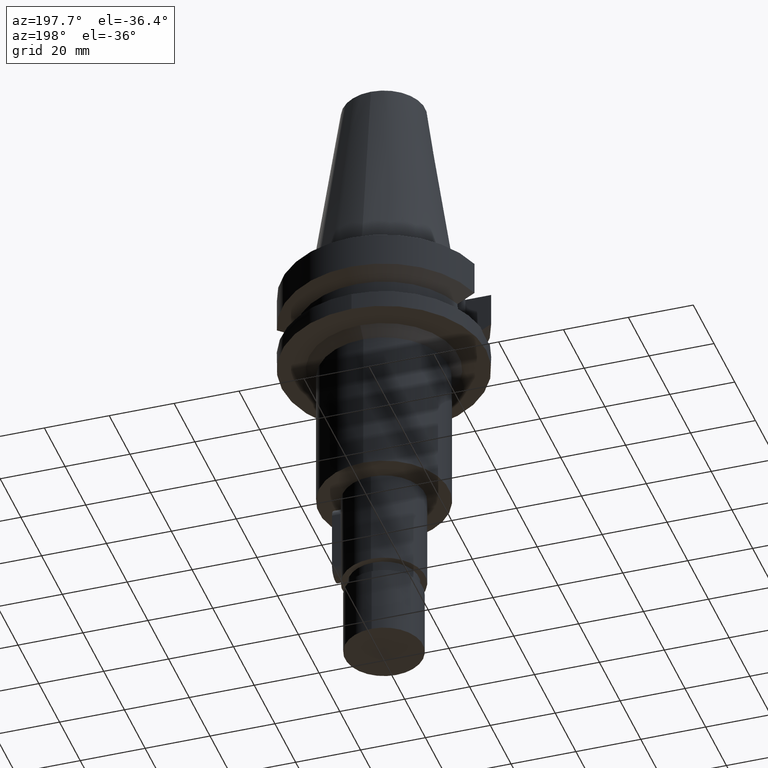
[diagram: clean part render]
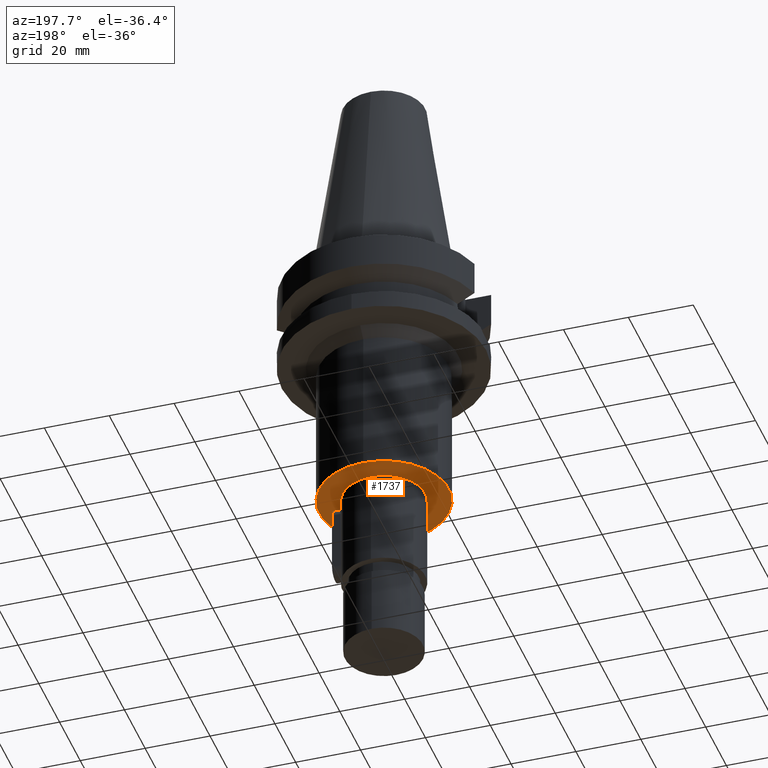
[diagram: same view with one face highlighted and labeled with its STEP entity id]
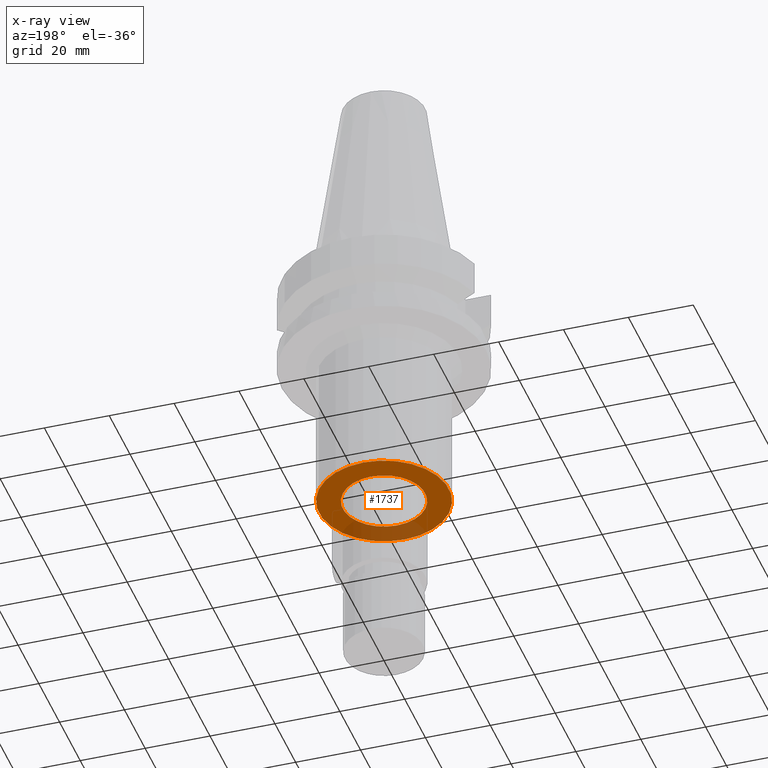
[diagram: x-ray of the same camera — body ghosted, the highlighted face saturated]
A machine part, auxiliary view. The second image highlights one B-rep face of the part: STEP entity #1737.
The next image is the same camera in x-ray: the body ghosted, the highlighted face saturated — about 22% of this face is hidden behind the body in this view.
In plain terms, the highlighted planar face has unit normal (0, 0, -1).
Its self-contained STEP definition (entity closure, byte-faithful):
#694=CARTESIAN_POINT('',(0.E0,2.145213798066E-14,-7.5E1));
#695=DIRECTION('',(0.E0,0.E0,1.E0));
#696=DIRECTION('',(0.E0,1.E0,0.E0));
#697=AXIS2_PLACEMENT_3D('',#694,#695,#696);
#702=CARTESIAN_POINT('',(0.E0,2.145213798066E-14,-7.5E1));
#703=DIRECTION('',(0.E0,0.E0,1.E0));
#704=DIRECTION('',(0.E0,-1.E0,0.E0));
#705=AXIS2_PLACEMENT_3D('',#702,#703,#704);
#710=CARTESIAN_POINT('',(0.E0,2.145213798066E-14,-7.5E1));
#711=DIRECTION('',(0.E0,0.E0,-1.E0));
#712=DIRECTION('',(0.E0,1.E0,0.E0));
#713=AXIS2_PLACEMENT_3D('',#710,#711,#712);
#718=CARTESIAN_POINT('',(0.E0,2.145213798066E-14,-7.5E1));
#719=DIRECTION('',(0.E0,0.E0,-1.E0));
#720=DIRECTION('',(0.E0,-1.E0,0.E0));
#721=AXIS2_PLACEMENT_3D('',#718,#719,#720);
#1183=CARTESIAN_POINT('',(0.E0,2.E1,-7.5E1));
#1184=VERTEX_POINT('',#1183);
#1185=CARTESIAN_POINT('',(0.E0,-2.E1,-7.5E1));
#1186=VERTEX_POINT('',#1185);
#1187=CARTESIAN_POINT('',(0.E0,1.27E1,-7.5E1));
#1188=CARTESIAN_POINT('',(0.E0,-1.27E1,-7.5E1));
#1189=VERTEX_POINT('',#1187);
#1190=VERTEX_POINT('',#1188);
#1722=CARTESIAN_POINT('',(0.E0,0.E0,-7.5E1));
#1723=DIRECTION('',(0.E0,0.E0,-1.E0));
#1724=DIRECTION('',(0.E0,-1.E0,0.E0));
#1725=AXIS2_PLACEMENT_3D('',#1722,#1723,#1724);
#1726=PLANE('',#1725);
#1727=ORIENTED_EDGE('',*,*,#1704,.T.);
#1728=ORIENTED_EDGE('',*,*,#1715,.T.);
#1729=EDGE_LOOP('',(#1727,#1728));
#1730=FACE_OUTER_BOUND('',#1729,.F.);
#1732=ORIENTED_EDGE('',*,*,#1731,.T.);
#1734=ORIENTED_EDGE('',*,*,#1733,.T.);
#1735=EDGE_LOOP('',(#1732,#1734));
#1736=FACE_BOUND('',#1735,.F.);
#698=CIRCLE('',#697,2.E1);
#706=CIRCLE('',#705,2.E1);
#714=CIRCLE('',#713,1.27E1);
#722=CIRCLE('',#721,1.27E1);
#1704=EDGE_CURVE('',#1184,#1186,#698,.T.);
#1715=EDGE_CURVE('',#1186,#1184,#706,.T.);
#1731=EDGE_CURVE('',#1189,#1190,#714,.T.);
#1733=EDGE_CURVE('',#1190,#1189,#722,.T.);
#1737=ADVANCED_FACE('',(#1730,#1736),#1726,.T.);